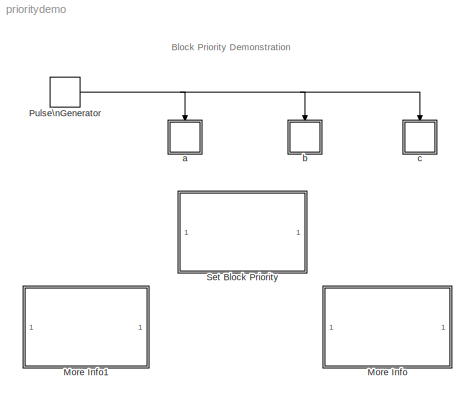
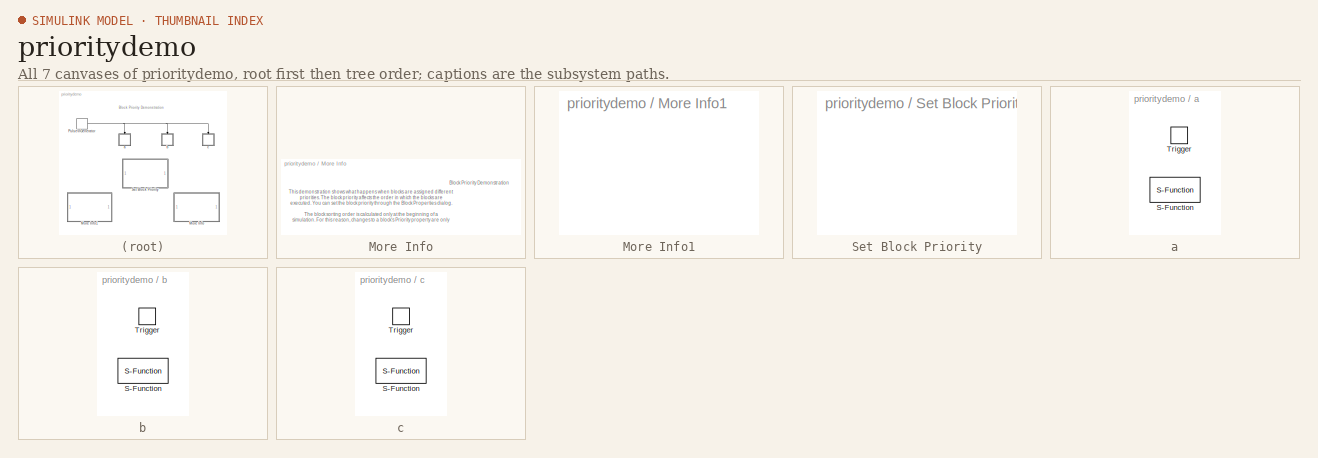
[diagram: thumbnail index - all 7 canvases of the model, root first then tree order]
MODEL prioritydemo
KIND model
BLOCK [SubSystem] More Info
  MaskDisplay = disp('Double click\\nhere for\\ninformation on\\nthis demonstration')
  MaskIconFrame = on
  MaskIconOpaque = on
  MaskIconRotate = none
  MaskIconUnits = autoscale
  MinAlgLoopOccurrences = off
  Ports = []
  PropExecContextAcrossSSBoundary = on
  RTWSystemCode = Auto
  TreatAsAtomicUnit = off
BLOCK [SubSystem] More Info1
  MaskDisplay = disp('Double click\\nhere for\\nSimulink Help')
  MaskIconFrame = on
  MaskIconOpaque = on
  MaskIconRotate = none
  MaskIconUnits = autoscale
  MinAlgLoopOccurrences = off
  OpenFcn = simcad(bdroot);
  Ports = []
  PropExecContextAcrossSSBoundary = on
  RTWSystemCode = Auto
  TreatAsAtomicUnit = off
BLOCK [DiscretePulseGenerator] Pulse\nGenerator
  Ports = [0, 1]
BLOCK [SubSystem] Set Block Priority
  MaskDescription = This block lets you select the priority that is used on the three triggered subsystems above it.  The priority may only be set when the simulation is stopped.
  MaskDisplay = disp(['Set<path>' PriorityOrder])
  MaskEnableString = on
  MaskIconFrame = on
  MaskIconOpaque = on
  MaskIconRotate = none
  MaskIconUnits = autoscale
  MaskInitialization = spriorityfcn([],[],[],'PriorityOrder');
  MaskPromptString = Priority order:
  MaskStyleString = popup(1 2 3|1 3 2|2 1 3|2 3 1|3 1 2|3 2 1)
  MaskToolTipString = on
  MaskTunableValueString = on
  MaskType = Set Block Priority
  MaskValueString = 1 2 3
  MaskVariables = PriorityOrder=&1;
  MaskVisibilityString = on
  MinAlgLoopOccurrences = off
  Ports = []
  PropExecContextAcrossSSBoundary = on
  RTWSystemCode = Auto
  StartFcn = set_param(gcbh,'MaskEnables',{'off'})
  StopFcn = set_param(gcbh,'MaskEnables',{'on'})
  TreatAsAtomicUnit = off
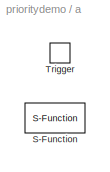
BLOCK [SubSystem] a
  AttributesFormatString = Priority: %<Priority>
  MinAlgLoopOccurrences = off
  Ports = [0, 0, 0, 1]
  Priority = 1
  PropExecContextAcrossSSBoundary = on
  RTWSystemCode = Auto
  TreatAsAtomicUnit = off
BLOCK [S-Function] a/S-Function
  FunctionName = spriorityfcn
  Ports = []
BLOCK [TriggerPort] a/Trigger
  Ports = []
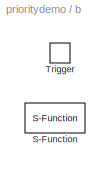
BLOCK [SubSystem] b
  AttributesFormatString = Priority: %<Priority>
  MinAlgLoopOccurrences = off
  Ports = [0, 0, 0, 1]
  Priority = 2
  PropExecContextAcrossSSBoundary = on
  RTWSystemCode = Auto
  TreatAsAtomicUnit = off
BLOCK [S-Function] b/S-Function
  FunctionName = spriorityfcn
  Ports = []
BLOCK [TriggerPort] b/Trigger
  Ports = []
BLOCK [SubSystem] c
  AttributesFormatString = Priority: %<Priority>
  MinAlgLoopOccurrences = off
  Ports = [0, 0, 0, 1]
  Priority = 3
  PropExecContextAcrossSSBoundary = on
  RTWSystemCode = Auto
  TreatAsAtomicUnit = off
BLOCK [S-Function] c/S-Function
  FunctionName = spriorityfcn
  Ports = []
BLOCK [TriggerPort] c/Trigger
  Ports = []
ANNOTATION (root): Block Priority Demonstration
ANNOTATION More Info: Block Priority Demonstration
ANNOTATION More Info: This demonstration shows what happens when blocks are assigned different\npriorities. The block priority affects the order in which the blocks are\nexecuted. You can set the block priority through the Block Properties dialog.\n\nThe block sorting order is calculated only at the beginning of a\nsimulation. For this reason, changes to a block's Priority property are only\nupdated when the simulation...<+378ch>
NET Pulse\nGenerator:1 -> a:trigger, b:trigger, c:trigger
note: NET lines group one-source signal fan-out (src -> all destinations, sorted); 1:1 wires keep LINE
note: 1 file-system path scrubbed to <path> (not preserved elsewhere — flat text is the only slx artifact)
